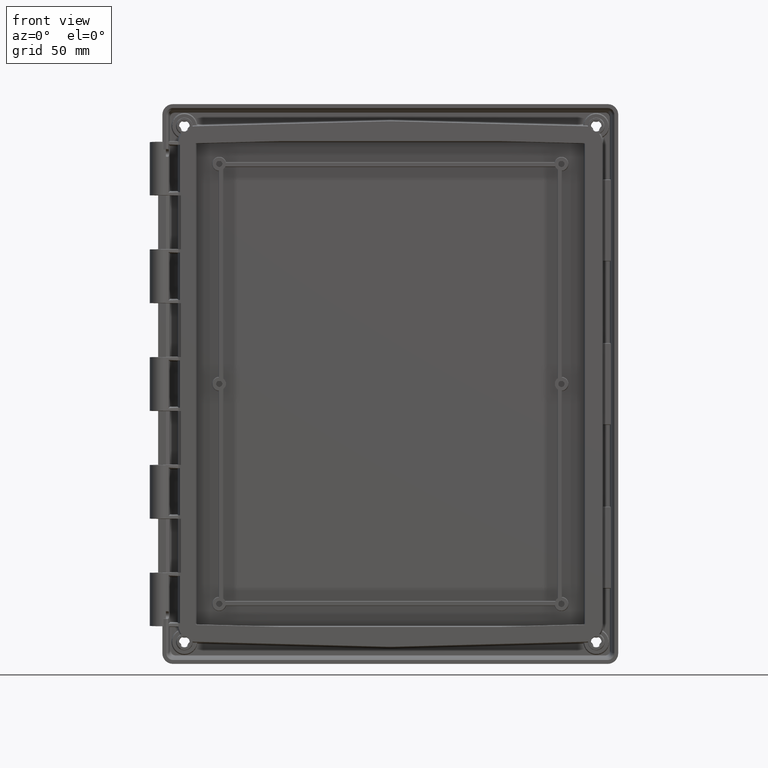
[diagram: clean part render]
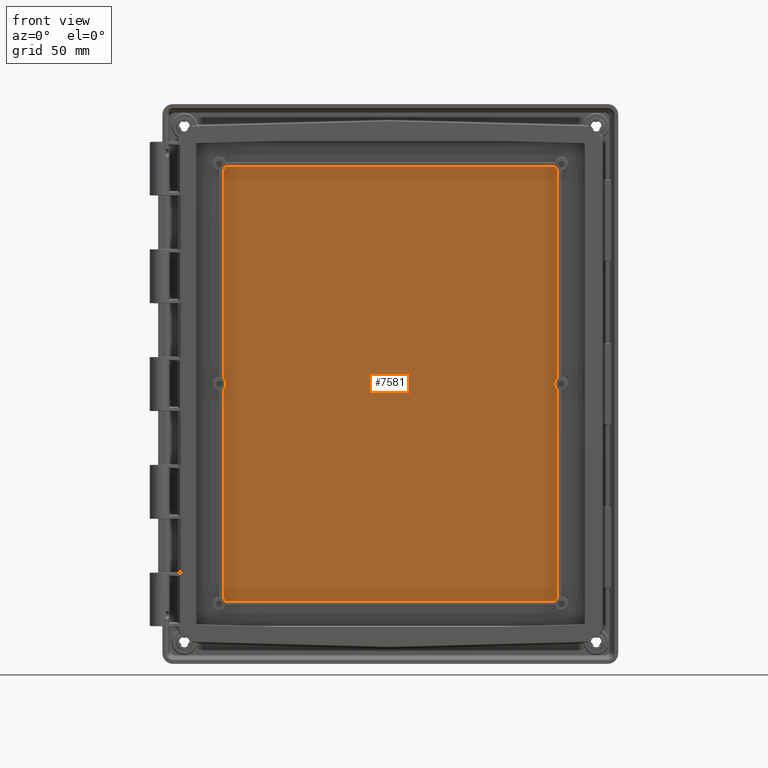
[diagram: same view with one face highlighted and labeled with its STEP entity id]
A machine part, front view. The second image highlights one B-rep face of the part: STEP entity #7581.
In plain terms, the highlighted planar face has unit normal (0, -1, 0).
Its self-contained STEP definition (entity closure, byte-faithful):
#187=DIRECTION('',(0.E0,0.E0,1.E0));
#188=VECTOR('',#187,1.088040910148E2);
#189=CARTESIAN_POINT('',(-8.678008363697E1,1.2599E1,2.747954492587E0));
#190=LINE('',#189,#188);
#191=DIRECTION('',(1.E0,0.E0,0.E0));
#192=VECTOR('',#191,1.715597584890E2);
#193=CARTESIAN_POINT('',(-8.577987924449E1,1.2599E1,1.127800836370E2));
#194=LINE('',#193,#192);
#195=DIRECTION('',(0.E0,0.E0,-1.E0));
#196=VECTOR('',#195,1.088040910148E2);
#197=CARTESIAN_POINT('',(8.678008363697E1,1.2599E1,1.115520455074E2));
#198=LINE('',#197,#196);
#199=DIRECTION('',(0.E0,0.E0,-1.E0));
#200=VECTOR('',#199,1.088040910148E2);
#201=CARTESIAN_POINT('',(8.678008363697E1,1.2599E1,-2.747954492587E0));
#202=LINE('',#201,#200);
#203=DIRECTION('',(-1.E0,0.E0,0.E0));
#204=VECTOR('',#203,1.715597584890E2);
#205=CARTESIAN_POINT('',(8.577987924449E1,1.2599E1,-1.127800836370E2));
#206=LINE('',#205,#204);
#207=DIRECTION('',(0.E0,0.E0,1.E0));
#208=VECTOR('',#207,1.088040910148E2);
#209=CARTESIAN_POINT('',(-8.678008363697E1,1.2599E1,-1.115520455074E2));
#210=LINE('',#209,#208);
#5686=CARTESIAN_POINT('',(8.89E1,1.2599E1,1.143E2));
#5687=DIRECTION('',(0.E0,-1.E0,0.E0));
#5688=DIRECTION('',(-8.990060305109E-1,0.E0,-4.379362477633E-1));
#5689=AXIS2_PLACEMENT_3D('',#5686,#5687,#5688);
#5706=CARTESIAN_POINT('',(-8.89E1,1.2599E1,1.143E2));
#5707=DIRECTION('',(0.E0,-1.E0,0.E0));
#5708=DIRECTION('',(6.108153318032E-1,0.E0,-7.917730927697E-1));
#5709=AXIS2_PLACEMENT_3D('',#5706,#5707,#5708);
#5721=CARTESIAN_POINT('',(-8.89E1,1.2599E1,-1.143E2));
#5722=DIRECTION('',(0.E0,-1.E0,0.E0));
#5723=DIRECTION('',(8.990060305109E-1,0.E0,4.379362477633E-1));
#5724=AXIS2_PLACEMENT_3D('',#5721,#5722,#5723);
#5736=CARTESIAN_POINT('',(8.89E1,1.2599E1,-1.143E2));
#5737=DIRECTION('',(0.E0,-1.E0,0.E0));
#5738=DIRECTION('',(-6.108153318032E-1,0.E0,7.917730927697E-1));
#5739=AXIS2_PLACEMENT_3D('',#5736,#5737,#5738);
#5746=CARTESIAN_POINT('',(-8.89E1,1.2599E1,0.E0));
#5747=DIRECTION('',(0.E0,1.E0,0.E0));
#5748=DIRECTION('',(6.108153318032E-1,0.E0,7.917730927697E-1));
#5749=AXIS2_PLACEMENT_3D('',#5746,#5747,#5748);
#5766=CARTESIAN_POINT('',(8.89E1,1.2599E1,0.E0));
#5767=DIRECTION('',(0.E0,1.E0,0.E0));
#5768=DIRECTION('',(-6.108153318032E-1,0.E0,-7.917730927697E-1));
#5769=AXIS2_PLACEMENT_3D('',#5766,#5767,#5768);
#6688=CARTESIAN_POINT('',(8.577987924449E1,1.2599E1,1.127800836370E2));
#6689=CARTESIAN_POINT('',(8.678008363697E1,1.2599E1,1.115520455074E2));
#6690=VERTEX_POINT('',#6688);
#6691=VERTEX_POINT('',#6689);
#6692=CARTESIAN_POINT('',(-8.577987924449E1,1.2599E1,-1.127800836370E2));
#6693=CARTESIAN_POINT('',(-8.678008363697E1,1.2599E1,-1.115520455074E2));
#6694=VERTEX_POINT('',#6692);
#6695=VERTEX_POINT('',#6693);
#6696=CARTESIAN_POINT('',(-8.678008363697E1,1.2599E1,2.747954492587E0));
#6697=CARTESIAN_POINT('',(-8.678008363697E1,1.2599E1,-2.747954492587E0));
#6698=VERTEX_POINT('',#6696);
#6699=VERTEX_POINT('',#6697);
#6700=CARTESIAN_POINT('',(8.678008363697E1,1.2599E1,-2.747954492587E0));
#6701=CARTESIAN_POINT('',(8.678008363697E1,1.2599E1,2.747954492587E0));
#6702=VERTEX_POINT('',#6700);
#6703=VERTEX_POINT('',#6701);
#6704=CARTESIAN_POINT('',(-8.678008363697E1,1.2599E1,1.115520455074E2));
#6705=CARTESIAN_POINT('',(-8.577987924449E1,1.2599E1,1.127800836370E2));
#6706=VERTEX_POINT('',#6704);
#6707=VERTEX_POINT('',#6705);
#6708=CARTESIAN_POINT('',(8.678008363697E1,1.2599E1,-1.115520455074E2));
#6709=CARTESIAN_POINT('',(8.577987924449E1,1.2599E1,-1.127800836370E2));
#6710=VERTEX_POINT('',#6708);
#6711=VERTEX_POINT('',#6709);
#7550=CARTESIAN_POINT('',(-1.176856057321E2,1.2599E1,-1.439518968221E2));
#7551=DIRECTION('',(0.E0,-1.E0,0.E0));
#7552=DIRECTION('',(1.E0,0.E0,0.E0));
#7553=AXIS2_PLACEMENT_3D('',#7550,#7551,#7552);
#7554=PLANE('',#7553);
#7556=ORIENTED_EDGE('',*,*,#7555,.T.);
#7558=ORIENTED_EDGE('',*,*,#7557,.T.);
#7560=ORIENTED_EDGE('',*,*,#7559,.T.);
#7562=ORIENTED_EDGE('',*,*,#7561,.T.);
#7564=ORIENTED_EDGE('',*,*,#7563,.T.);
#7566=ORIENTED_EDGE('',*,*,#7565,.F.);
#7568=ORIENTED_EDGE('',*,*,#7567,.T.);
#7570=ORIENTED_EDGE('',*,*,#7569,.T.);
#7572=ORIENTED_EDGE('',*,*,#7571,.T.);
#7574=ORIENTED_EDGE('',*,*,#7573,.T.);
#7576=ORIENTED_EDGE('',*,*,#7575,.T.);
#7578=ORIENTED_EDGE('',*,*,#7577,.F.);
#7579=EDGE_LOOP('',(#7556,#7558,#7560,#7562,#7564,#7566,#7568,#7570,#7572,#7574,
#7576,#7578));
#7580=FACE_OUTER_BOUND('',#7579,.F.);
#7581=ADVANCED_FACE('',(#7580),#7554,.T.);
#5690=CIRCLE('',#5689,3.470633844066E0);
#5710=CIRCLE('',#5709,3.470633844066E0);
#5725=CIRCLE('',#5724,3.470633844066E0);
#5740=CIRCLE('',#5739,3.470633844066E0);
#5750=CIRCLE('',#5749,3.470633844066E0);
#5770=CIRCLE('',#5769,3.470633844066E0);
#7555=EDGE_CURVE('',#6698,#6706,#190,.T.);
#7557=EDGE_CURVE('',#6706,#6707,#5710,.T.);
#7559=EDGE_CURVE('',#6707,#6690,#194,.T.);
#7561=EDGE_CURVE('',#6690,#6691,#5690,.T.);
#7563=EDGE_CURVE('',#6691,#6703,#198,.T.);
#7565=EDGE_CURVE('',#6702,#6703,#5770,.T.);
#7567=EDGE_CURVE('',#6702,#6710,#202,.T.);
#7569=EDGE_CURVE('',#6710,#6711,#5740,.T.);
#7571=EDGE_CURVE('',#6711,#6694,#206,.T.);
#7573=EDGE_CURVE('',#6694,#6695,#5725,.T.);
#7575=EDGE_CURVE('',#6695,#6699,#210,.T.);
#7577=EDGE_CURVE('',#6698,#6699,#5750,.T.);